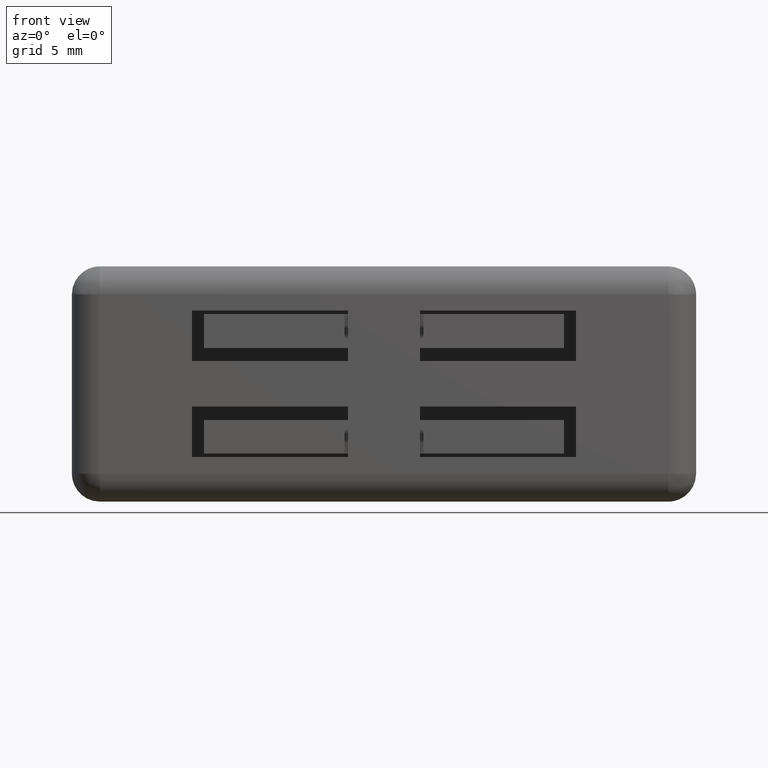
[diagram: clean part render]
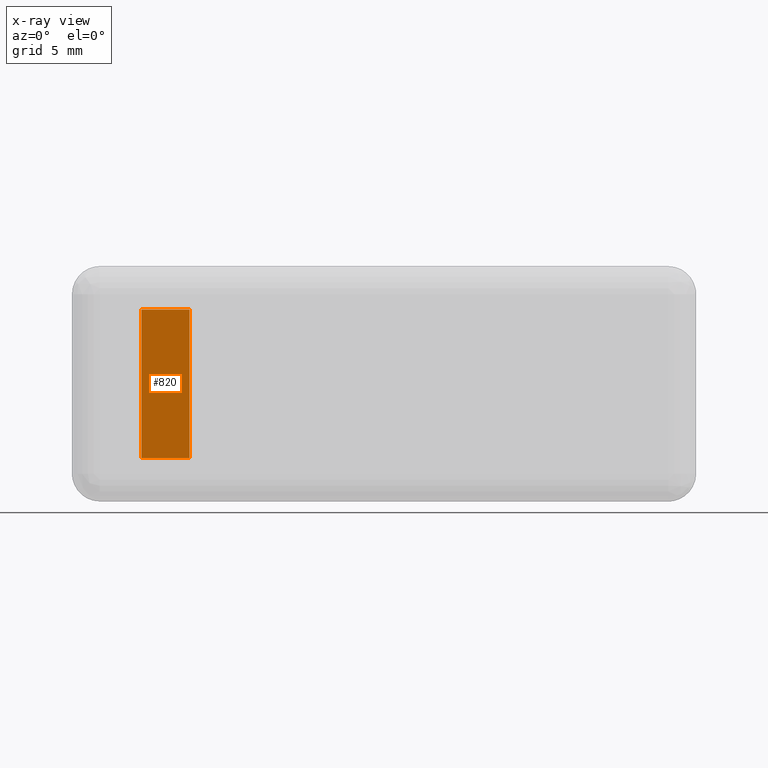
[diagram: x-ray — body ghosted, one internal face saturated and labeled with its STEP entity id]
A machine part, front view, then the same camera in x-ray: the body is ghosted and one INTERNAL B-rep face — a face not visible from any outside direction — is saturated and labeled: STEP entity #820.
In plain terms, the highlighted face is a freeform B-spline surface patch.
Its self-contained STEP definition (entity closure, byte-faithful):
#432=CARTESIAN_POINT('',(-10.100011000000020,-11.099986963966600,3.0));
#433=VERTEX_POINT('',#432);
#439=CARTESIAN_POINT('',(-8.100011000000000,-11.099986963966600,3.0));
#440=VERTEX_POINT('',#439);
#441=CARTESIAN_POINT('',(-8.100011000000000,-11.099986963966600,3.0));
#442=CARTESIAN_POINT('',(-10.100011000000020,-11.099986963966600,3.0));
#443=QUASI_UNIFORM_CURVE('',1,(#441,#442),.UNSPECIFIED.,.F.,.U.);
#444=EDGE_CURVE('',#440,#433,#443,.T.);
#510=CARTESIAN_POINT('',(-8.100011000000000,-11.099986963966600,-3.200000000000000));
#511=VERTEX_POINT('',#510);
#517=CARTESIAN_POINT('',(-10.100011000000020,-11.099986963966600,-3.200000000000000));
#518=VERTEX_POINT('',#517);
#519=CARTESIAN_POINT('',(-8.100011000000000,-11.099986963966600,-3.200000000000000));
#520=CARTESIAN_POINT('',(-10.100011000000020,-11.099986963966600,-3.200000000000000));
#521=QUASI_UNIFORM_CURVE('',1,(#519,#520),.UNSPECIFIED.,.F.,.U.);
#522=EDGE_CURVE('',#511,#518,#521,.T.);
#797=CARTESIAN_POINT('',(-10.100011000000020,-11.099986963966600,-3.200000000000000));
#798=CARTESIAN_POINT('',(-10.100011000000020,-11.099986963966600,3.0));
#799=QUASI_UNIFORM_CURVE('',1,(#797,#798),.UNSPECIFIED.,.F.,.U.);
#800=EDGE_CURVE('',#518,#433,#799,.T.);
#805=CARTESIAN_POINT('',(-10.199910871847059,-11.099986963966600,-3.509690046184361));
#806=CARTESIAN_POINT('',(-10.199910871847059,-11.099986963966600,3.309690157049001));
#807=CARTESIAN_POINT('',(-8.000110806287882,-11.099986963966600,-3.509690046184361));
#808=CARTESIAN_POINT('',(-8.000110806287882,-11.099986963966600,3.309690157049001));
#809=B_SPLINE_SURFACE_WITH_KNOTS('',1,1,((#805,#807),(#806,#808)),.UNSPECIFIED.,.F.,.F.,.U.,(2,2),(2,2),(0.0,6.819380203233362),(0.0,2.199800065559176),.UNSPECIFIED.);
#810=ORIENTED_EDGE('',*,*,#444,.T.);
#811=ORIENTED_EDGE('',*,*,#800,.F.);
#812=ORIENTED_EDGE('',*,*,#522,.F.);
#813=CARTESIAN_POINT('',(-8.100011000000000,-11.099986963966600,-3.200000000000000));
#814=CARTESIAN_POINT('',(-8.100011000000000,-11.099986963966600,3.0));
#815=QUASI_UNIFORM_CURVE('',1,(#813,#814),.UNSPECIFIED.,.F.,.U.);
#816=EDGE_CURVE('',#511,#440,#815,.T.);
#817=ORIENTED_EDGE('',*,*,#816,.T.);
#818=EDGE_LOOP('',(#810,#811,#812,#817));
#819=FACE_OUTER_BOUND('',#818,.T.);
#820=ADVANCED_FACE('',(#819),#809,.F.);